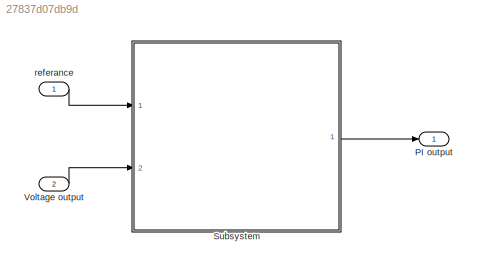
MODEL slx_27837d07db9d
KIND model
CONFIG AbsTol = auto
CONFIG EnableMultiTasking = off
CONFIG FixedStep = 1/25e3
CONFIG MaxStep = auto
CONFIG MinStep = auto
CONFIG RelTol = 1e-3
CONFIG SampleTimeConstraint = Unconstrained
CONFIG SolverName = FixedStepAuto
CONFIG StartTime = 0.0
CONFIG StopTime = 1.0
BLOCK [Outport] PI output
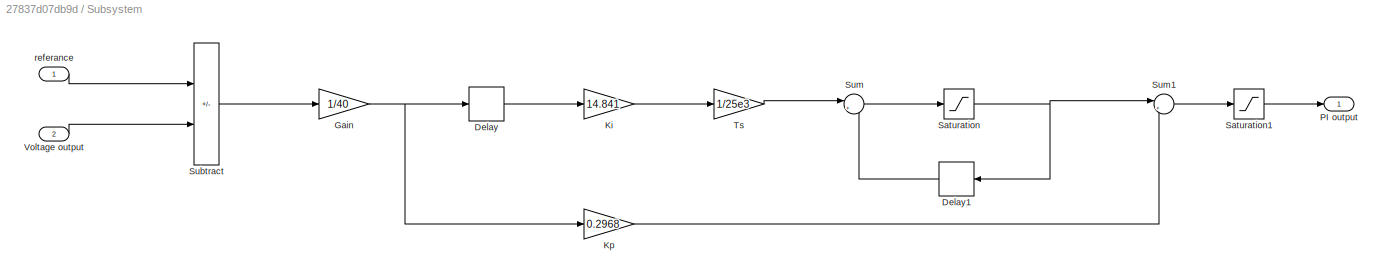
BLOCK [SubSystem] Subsystem
  Ports = [2, 1]
  RequestExecContextInheritance = off
BLOCK [Delay] Subsystem/Delay
  DelayLength = 1
  InputPortMap = u0
  Ports = [1, 1]
BLOCK [Delay] Subsystem/Delay1
  DelayLength = 1
  InputPortMap = u0
  Ports = [1, 1]
BLOCK [Gain] Subsystem/Gain
  Gain = 1/40
BLOCK [Gain] Subsystem/Ki
  Gain = 14.841
BLOCK [Gain] Subsystem/Kp
  Gain = 0.2968
BLOCK [Outport] Subsystem/PI output
BLOCK [Saturate] Subsystem/Saturation
  LowerLimit = 0.01
  UpperLimit = 0.99
BLOCK [Saturate] Subsystem/Saturation1
  LowerLimit = 0.01
  UpperLimit = 0.99
BLOCK [Sum] Subsystem/Subtract
  IconShape = rectangular
  Inputs = +-
  Ports = [2, 1]
BLOCK [Sum] Subsystem/Sum
  Inputs = |++
  Ports = [2, 1]
BLOCK [Sum] Subsystem/Sum1
  Inputs = |++
  Ports = [2, 1]
BLOCK [Gain] Subsystem/Ts
  Gain = 1/25e3
BLOCK [Inport] Subsystem/Voltage output
  Port = 2
BLOCK [Inport] Subsystem/referance
BLOCK [Inport] Voltage output
  Port = 2
BLOCK [Inport] referance
LINE Subsystem/Delay1:1 -> Subsystem/Sum:2
LINE Subsystem/Delay:1 -> Subsystem/Ki:1
NET Subsystem/Gain:1 -> Subsystem/Delay:1, Subsystem/Kp:1
LINE Subsystem/Ki:1 -> Subsystem/Ts:1
LINE Subsystem/Kp:1 -> Subsystem/Sum1:2
LINE Subsystem/Saturation1:1 -> Subsystem/PI output:1
NET Subsystem/Saturation:1 -> Subsystem/Delay1:1, Subsystem/Sum1:1
LINE Subsystem/Subtract:1 -> Subsystem/Gain:1
LINE Subsystem/Sum1:1 -> Subsystem/Saturation1:1
LINE Subsystem/Sum:1 -> Subsystem/Saturation:1
LINE Subsystem/Ts:1 -> Subsystem/Sum:1
LINE Subsystem/Voltage output:1 -> Subsystem/Subtract:2
LINE Subsystem/referance:1 -> Subsystem/Subtract:1
LINE Subsystem:1 -> PI output:1
LINE Voltage output:1 -> Subsystem:2
LINE referance:1 -> Subsystem:1
note: NET lines group one-source signal fan-out (src -> all destinations, sorted); 1:1 wires keep LINE
